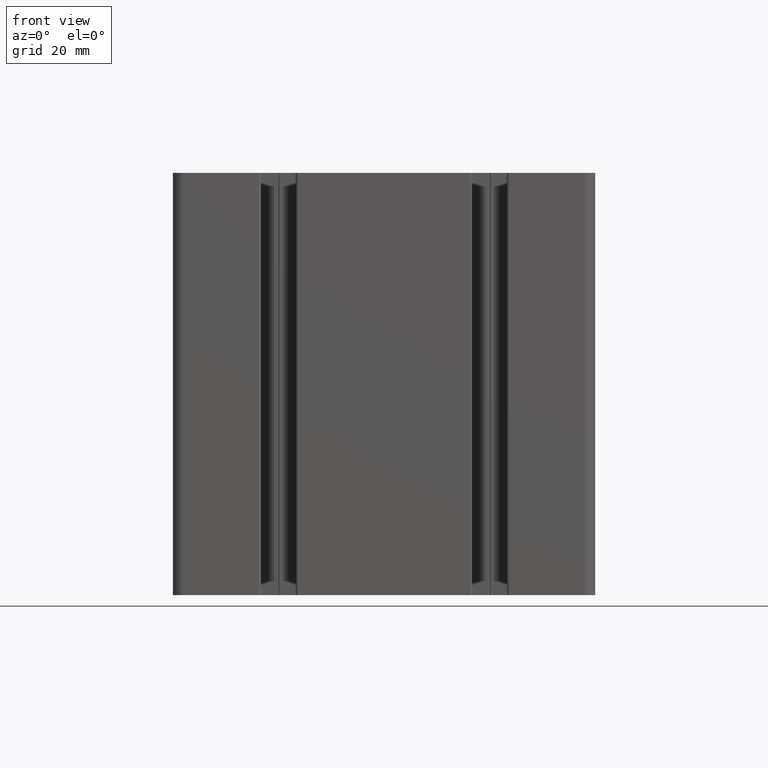
[diagram: clean part render]
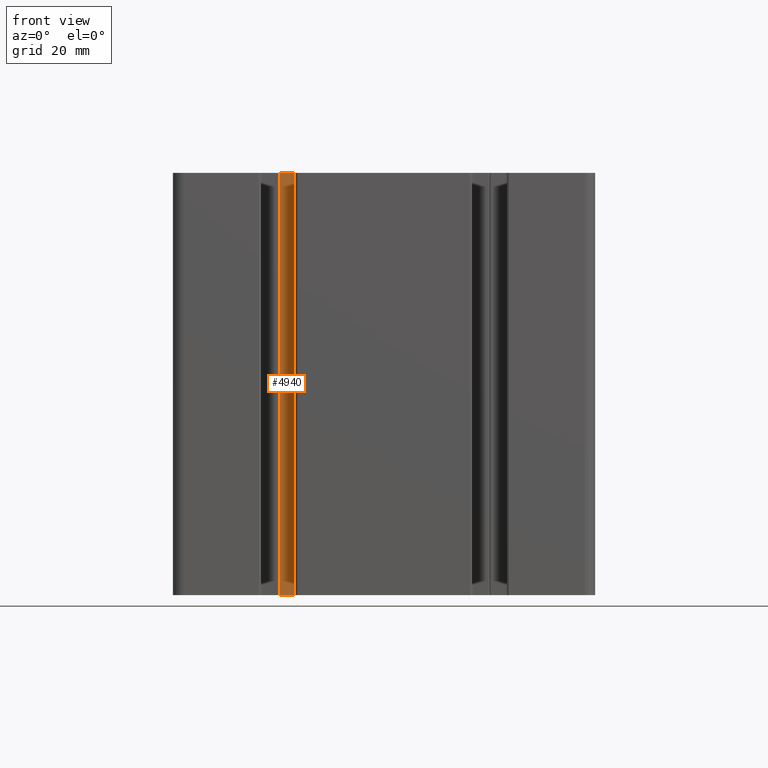
[diagram: same view with one face highlighted and labeled with its STEP entity id]
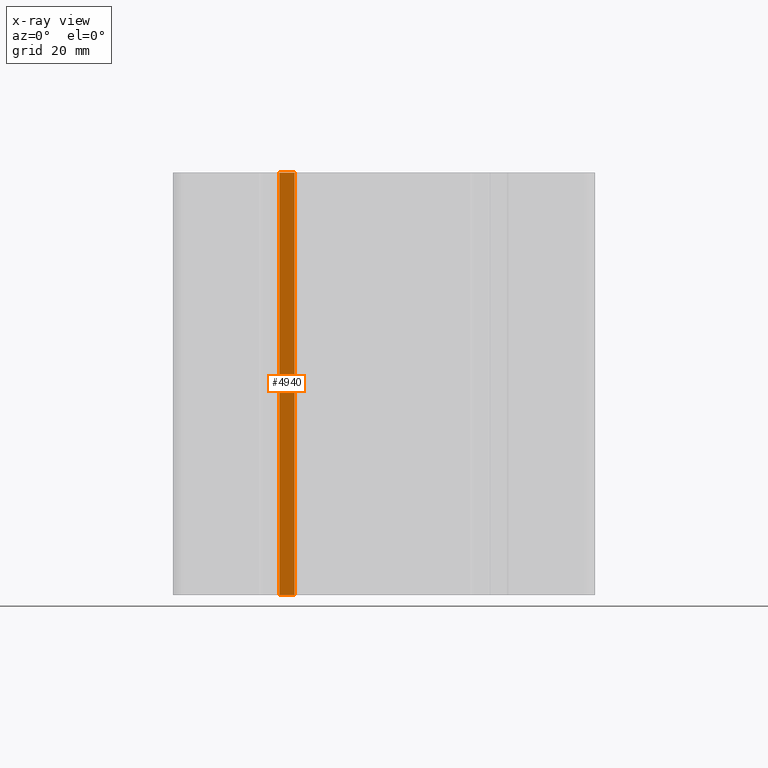
[diagram: x-ray of the same camera — body ghosted, the highlighted face saturated]
A machine part, front view. The second image highlights one B-rep face of the part: STEP entity #4940.
The next image is the same camera in x-ray: the body ghosted, the highlighted face saturated — about 0% of this face is hidden behind the body in this view.
In plain terms, the highlighted planar face has unit normal (-0, -1, 0).
Its self-contained STEP definition (entity closure, byte-faithful):
#592=FACE_OUTER_BOUND('',#846,.T.);
#846=EDGE_LOOP('',(#3875,#3876,#3877,#3878));
#1280=LINE('',#8094,#1772);
#1281=LINE('',#8097,#1773);
#1282=LINE('',#8099,#1774);
#1283=LINE('',#8100,#1775);
#1772=VECTOR('',#6616,100.);
#1773=VECTOR('',#6619,3.5999999998014);
#1774=VECTOR('',#6620,3.5999999998014);
#1775=VECTOR('',#6621,100.);
#2281=VERTEX_POINT('',#8090);
#2282=VERTEX_POINT('',#8092);
#2283=VERTEX_POINT('',#8096);
#2284=VERTEX_POINT('',#8098);
#2956=EDGE_CURVE('',#2281,#2282,#1280,.T.);
#2957=EDGE_CURVE('',#2283,#2281,#1281,.T.);
#2958=EDGE_CURVE('',#2284,#2282,#1282,.T.);
#2959=EDGE_CURVE('',#2283,#2284,#1283,.T.);
#3875=ORIENTED_EDGE('',*,*,#2957,.T.);
#3876=ORIENTED_EDGE('',*,*,#2956,.T.);
#3877=ORIENTED_EDGE('',*,*,#2958,.F.);
#3878=ORIENTED_EDGE('',*,*,#2959,.F.);
#4716=PLANE('',#5388);
#4940=ADVANCED_FACE('',(#592),#4716,.T.);
#5388=AXIS2_PLACEMENT_3D('',#8095,#6617,#6618);
#6616=DIRECTION('',(0.,0.,1.));
#6617=DIRECTION('center_axis',(-3.67113746829638E-11,-1.,0.));
#6618=DIRECTION('ref_axis',(1.,-3.67116115285171E-11,0.));
#6619=DIRECTION('',(1.,-3.67113746829638E-11,0.));
#6620=DIRECTION('',(1.,-3.67113746829638E-11,0.));
#6621=DIRECTION('',(0.,0.,1.));
#8090=CARTESIAN_POINT('',(-21.1999999999914,-34.7000000000855,0.));
#8092=CARTESIAN_POINT('',(-21.1999999999914,-34.7000000000855,100.));
#8094=CARTESIAN_POINT('',(-21.1999999999914,-34.7000000000855,0.));
#8095=CARTESIAN_POINT('Origin',(-24.7999999997928,-34.6999999999533,0.));
#8096=CARTESIAN_POINT('',(-24.7999999997928,-34.6999999999533,0.));
#8097=CARTESIAN_POINT('',(-24.7999999997928,-34.6999999999533,0.));
#8098=CARTESIAN_POINT('',(-24.7999999997928,-34.6999999999533,100.));
#8099=CARTESIAN_POINT('',(-24.7999999997928,-34.6999999999533,100.));
#8100=CARTESIAN_POINT('',(-24.7999999997928,-34.6999999999533,0.));